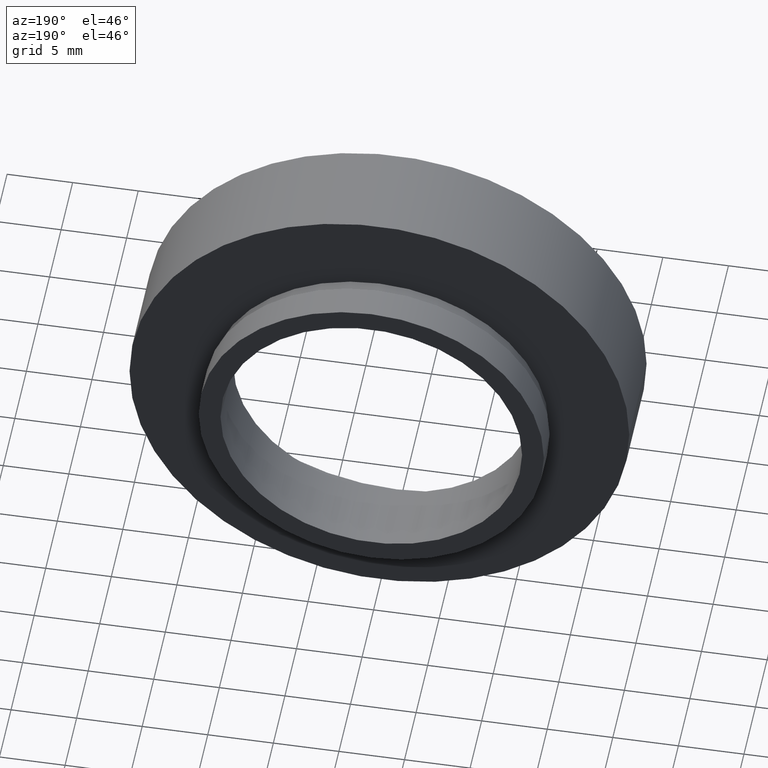
[diagram: clean part render]
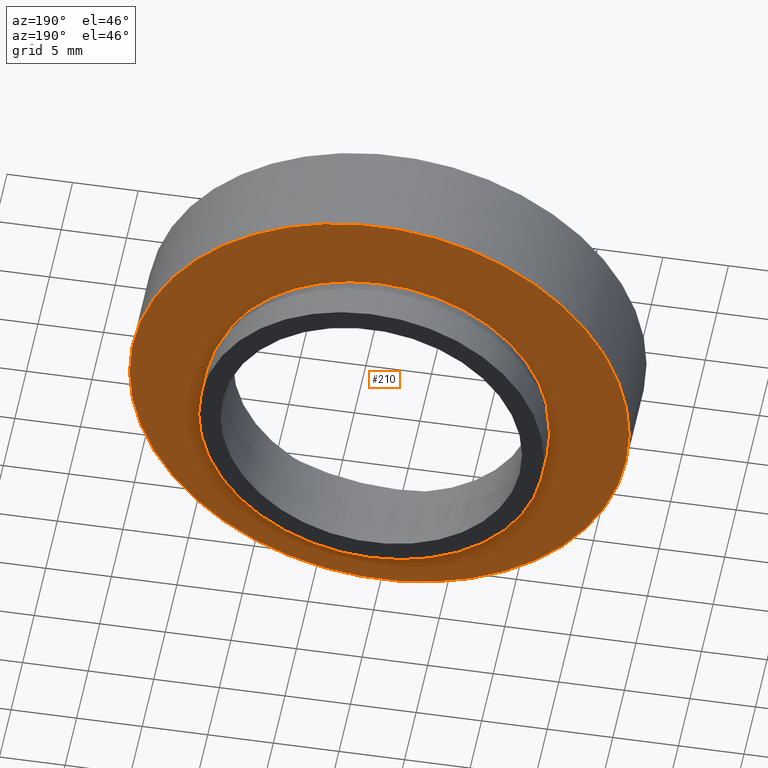
[diagram: same view with one face highlighted and labeled with its STEP entity id]
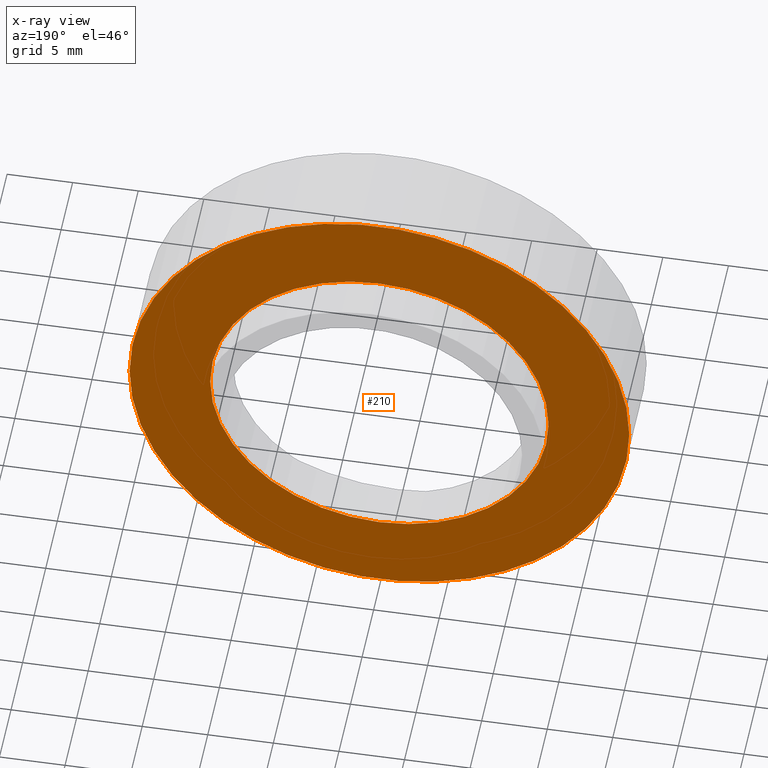
[diagram: x-ray of the same camera — body ghosted, the highlighted face saturated]
A machine part, auxiliary view. The second image highlights one B-rep face of the part: STEP entity #210.
The next image is the same camera in x-ray: the body ghosted, the highlighted face saturated — about 0% of this face is hidden behind the body in this view.
In plain terms, the highlighted planar face has unit normal (0, -1, 0).
Its self-contained STEP definition (entity closure, byte-faithful):
#25 = CARTESIAN_POINT ( 'NONE',  ( 1.149455719078122700E-015, 7.499999999999998200, 0.0000000000000000000 ) ) ;
#26 = EDGE_CURVE ( 'NONE', #590, #112, #105, .T. ) ;
#32 = DIRECTION ( 'NONE',  ( -1.224646799147351000E-016, 1.000000000000000000, -0.0000000000000000000 ) ) ;
#37 = FACE_OUTER_BOUND ( 'NONE', #483, .T. ) ;
#48 = ORIENTED_EDGE ( 'NONE', *, *, #26, .T. ) ;
#65 = AXIS2_PLACEMENT_3D ( 'NONE', #25, #421, #469 ) ;
#72 = CARTESIAN_POINT ( 'NONE',  ( 19.05000000000000100, 7.500000000000000900, 2.332952152375707600E-015 ) ) ;
#91 = EDGE_CURVE ( 'NONE', #112, #590, #350, .T. ) ;
#102 = DIRECTION ( 'NONE',  ( -1.224646799147351000E-016, 1.000000000000000000, -0.0000000000000000000 ) ) ;
#105 = CIRCLE ( 'NONE', #372, 19.05000000000000100 ) ;
#112 = VERTEX_POINT ( 'NONE', #72 ) ;
#143 = VERTEX_POINT ( 'NONE', #424 ) ;
#193 = ORIENTED_EDGE ( 'NONE', *, *, #255, .F. ) ;
#210 = ADVANCED_FACE ( 'NONE', ( #428, #37 ), #611, .F. ) ;
#231 = AXIS2_PLACEMENT_3D ( 'NONE', #333, #435, #337 ) ;
#243 = CARTESIAN_POINT ( 'NONE',  ( 12.90000000000000200, 7.500000000000000000, 0.0000000000000000000 ) ) ;
#245 = CIRCLE ( 'NONE', #231, 12.90000000000000000 ) ;
#255 = EDGE_CURVE ( 'NONE', #143, #256, #245, .T. ) ;
#256 = VERTEX_POINT ( 'NONE', #622 ) ;
#266 = CARTESIAN_POINT ( 'NONE',  ( 1.149455719078122700E-015, 7.499999999999998200, 0.0000000000000000000 ) ) ;
#284 = EDGE_CURVE ( 'NONE', #256, #143, #314, .T. ) ;
#288 = DIRECTION ( 'NONE',  ( 1.000000000000000000, 1.224646799147351000E-016, 0.0000000000000000000 ) ) ;
#292 = DIRECTION ( 'NONE',  ( 1.224646799147351000E-016, -1.000000000000000000, 0.0000000000000000000 ) ) ;
#314 = CIRCLE ( 'NONE', #494, 12.90000000000000000 ) ;
#333 = CARTESIAN_POINT ( 'NONE',  ( 1.149455719078122700E-015, 7.499999999999998200, 0.0000000000000000000 ) ) ;
#337 = DIRECTION ( 'NONE',  ( -1.000000000000000000, -1.344746880602176000E-016, 0.0000000000000000000 ) ) ;
#350 = CIRCLE ( 'NONE', #65, 19.05000000000000100 ) ;
#372 = AXIS2_PLACEMENT_3D ( 'NONE', #266, #32, #562 ) ;
#380 = ORIENTED_EDGE ( 'NONE', *, *, #91, .T. ) ;
#406 = CARTESIAN_POINT ( 'NONE',  ( -19.05000000000000100, 7.499999999999995600, 0.0000000000000000000 ) ) ;
#421 = DIRECTION ( 'NONE',  ( -1.224646799147351000E-016, 1.000000000000000000, -0.0000000000000000000 ) ) ;
#424 = CARTESIAN_POINT ( 'NONE',  ( 12.90000000000000200, 7.500000000000000000, 1.579794370900085700E-015 ) ) ;
#428 = FACE_BOUND ( 'NONE', #461, .T. ) ;
#435 = DIRECTION ( 'NONE',  ( -1.224646799147351000E-016, 1.000000000000000000, -0.0000000000000000000 ) ) ;
#444 = DIRECTION ( 'NONE',  ( -1.000000000000000000, -1.344746880602176000E-016, 0.0000000000000000000 ) ) ;
#458 = AXIS2_PLACEMENT_3D ( 'NONE', #243, #292, #288 ) ;
#461 = EDGE_LOOP ( 'NONE', ( #543, #193 ) ) ;
#469 = DIRECTION ( 'NONE',  ( -1.000000000000000000, -1.365923996832131600E-016, 0.0000000000000000000 ) ) ;
#483 = EDGE_LOOP ( 'NONE', ( #48, #380 ) ) ;
#494 = AXIS2_PLACEMENT_3D ( 'NONE', #588, #102, #444 ) ;
#543 = ORIENTED_EDGE ( 'NONE', *, *, #284, .F. ) ;
#562 = DIRECTION ( 'NONE',  ( -1.000000000000000000, -1.365923996832131600E-016, 0.0000000000000000000 ) ) ;
#588 = CARTESIAN_POINT ( 'NONE',  ( 1.149455719078122700E-015, 7.499999999999998200, 0.0000000000000000000 ) ) ;
#590 = VERTEX_POINT ( 'NONE', #406 ) ;
#611 = PLANE ( 'NONE',  #458 ) ;
#622 = CARTESIAN_POINT ( 'NONE',  ( -12.89999999999999900, 7.499999999999996400, 0.0000000000000000000 ) ) ;